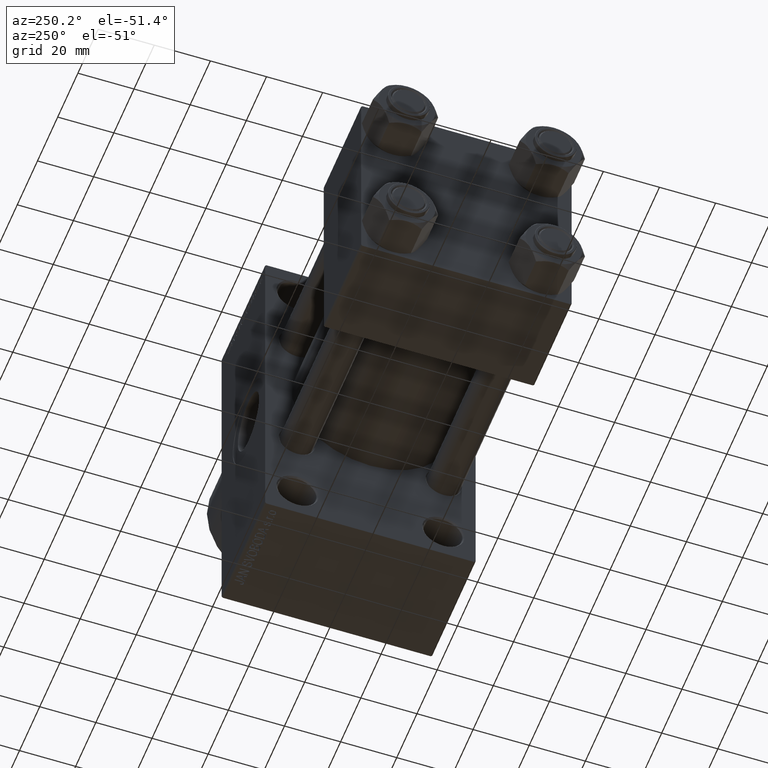
[diagram: clean part render]
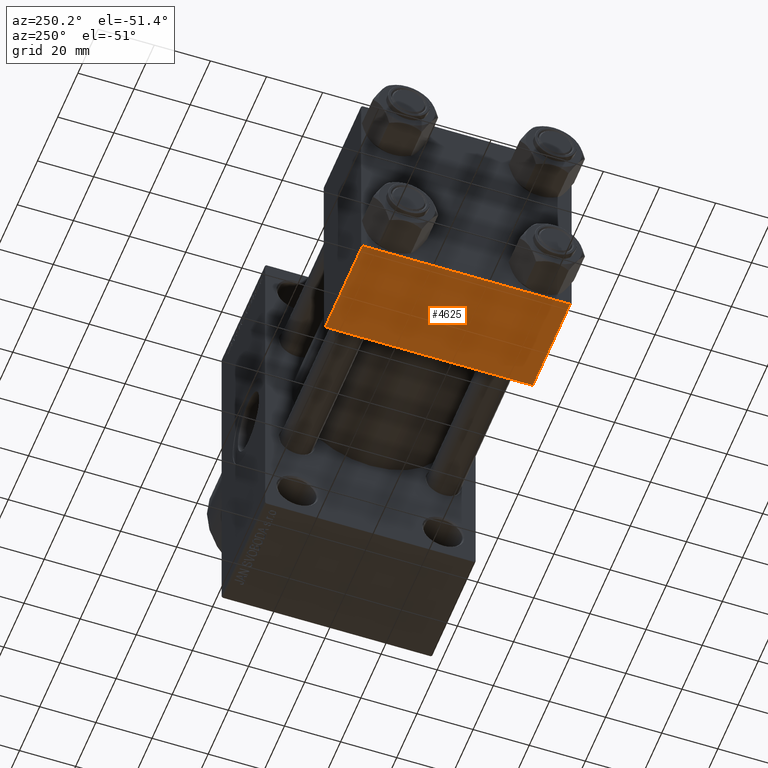
[diagram: same view with one face highlighted and labeled with its STEP entity id]
A machine part, auxiliary view. The second image highlights one B-rep face of the part: STEP entity #4625.
In plain terms, the highlighted planar face has unit normal (0, 0, -1).
Its self-contained STEP definition (entity closure, byte-faithful):
#887 = VERTEX_POINT ( 'NONE', #10689 ) ;
#1987 = CARTESIAN_POINT ( 'NONE',  ( 0.000000000000000000, -37.00000000000002132, -37.50000000000000711 ) ) ;
#2120 = DIRECTION ( 'NONE',  ( 0.000000000000000000, -1.000000000000000000, -9.251858538542972814E-17 ) ) ;
#2682 = DIRECTION ( 'NONE',  ( -1.000000000000000000, 0.000000000000000000, 0.000000000000000000 ) ) ;
#4625 = ADVANCED_FACE ( 'NONE', ( #9921 ), #39047, .T. ) ;
#5363 = AXIS2_PLACEMENT_3D ( 'NONE', #46447, #21122, #39279 ) ;
#5690 = CARTESIAN_POINT ( 'NONE',  ( 37.00000000000000000, 37.49999999999999289, -37.50000000000000000 ) ) ;
#6271 = LINE ( 'NONE', #1987, #25909 ) ;
#7409 = CARTESIAN_POINT ( 'NONE',  ( 37.00000000000000000, 36.99999999999997868, -37.50000000000000000 ) ) ;
#7525 = VECTOR ( 'NONE', #34838, 1000.000000000000000 ) ;
#9289 = LINE ( 'NONE', #5690, #22538 ) ;
#9921 = FACE_OUTER_BOUND ( 'NONE', #37028, .T. ) ;
#10689 = CARTESIAN_POINT ( 'NONE',  ( 37.00000000000000000, -37.00000000000002132, -37.50000000000000711 ) ) ;
#13101 = CARTESIAN_POINT ( 'NONE',  ( 0.000000000000000000, -37.00000000000002132, -37.50000000000000711 ) ) ;
#13186 = VERTEX_POINT ( 'NONE', #13101 ) ;
#18300 = VERTEX_POINT ( 'NONE', #30407 ) ;
#21122 = DIRECTION ( 'NONE',  ( 0.000000000000000000, 9.251858538542972814E-17, -1.000000000000000000 ) ) ;
#22155 = VERTEX_POINT ( 'NONE', #7409 ) ;
#22538 = VECTOR ( 'NONE', #2120, 1000.000000000000000 ) ;
#23927 = ORIENTED_EDGE ( 'NONE', *, *, #36359, .T. ) ;
#25909 = VECTOR ( 'NONE', #2682, 1000.000000000000000 ) ;
#30262 = EDGE_CURVE ( 'NONE', #18300, #13186, #30785, .T. ) ;
#30407 = CARTESIAN_POINT ( 'NONE',  ( 0.000000000000000000, 36.99999999999997868, -37.50000000000000000 ) ) ;
#30516 = DIRECTION ( 'NONE',  ( 1.000000000000000000, 0.000000000000000000, 0.000000000000000000 ) ) ;
#30785 = LINE ( 'NONE', #45355, #7525 ) ;
#30981 = LINE ( 'NONE', #41264, #35043 ) ;
#34838 = DIRECTION ( 'NONE',  ( 0.000000000000000000, -1.000000000000000000, -9.251858538542972814E-17 ) ) ;
#35043 = VECTOR ( 'NONE', #30516, 1000.000000000000000 ) ;
#36359 = EDGE_CURVE ( 'NONE', #18300, #22155, #30981, .T. ) ;
#37028 = EDGE_LOOP ( 'NONE', ( #43086, #23927, #41188, #38169 ) ) ;
#37908 = EDGE_CURVE ( 'NONE', #887, #13186, #6271, .T. ) ;
#38169 = ORIENTED_EDGE ( 'NONE', *, *, #37908, .T. ) ;
#39047 = PLANE ( 'NONE',  #5363 ) ;
#39279 = DIRECTION ( 'NONE',  ( 0.000000000000000000, 1.000000000000000000, 9.251858538542972814E-17 ) ) ;
#41188 = ORIENTED_EDGE ( 'NONE', *, *, #44113, .T. ) ;
#41264 = CARTESIAN_POINT ( 'NONE',  ( 37.00000000000000000, 36.99999999999997868, -37.50000000000000000 ) ) ;
#43086 = ORIENTED_EDGE ( 'NONE', *, *, #30262, .F. ) ;
#44113 = EDGE_CURVE ( 'NONE', #22155, #887, #9289, .T. ) ;
#45355 = CARTESIAN_POINT ( 'NONE',  ( 0.000000000000000000, 37.49999999999999289, -37.50000000000000000 ) ) ;
#46447 = CARTESIAN_POINT ( 'NONE',  ( 37.00000000000000000, 37.49999999999999289, -37.50000000000000000 ) ) ;